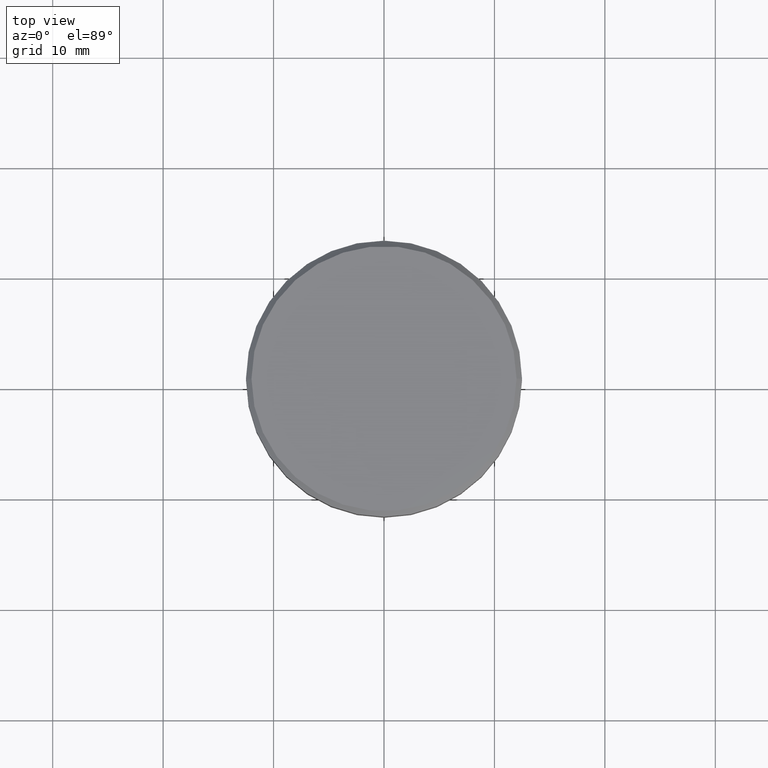
[diagram: clean part render]
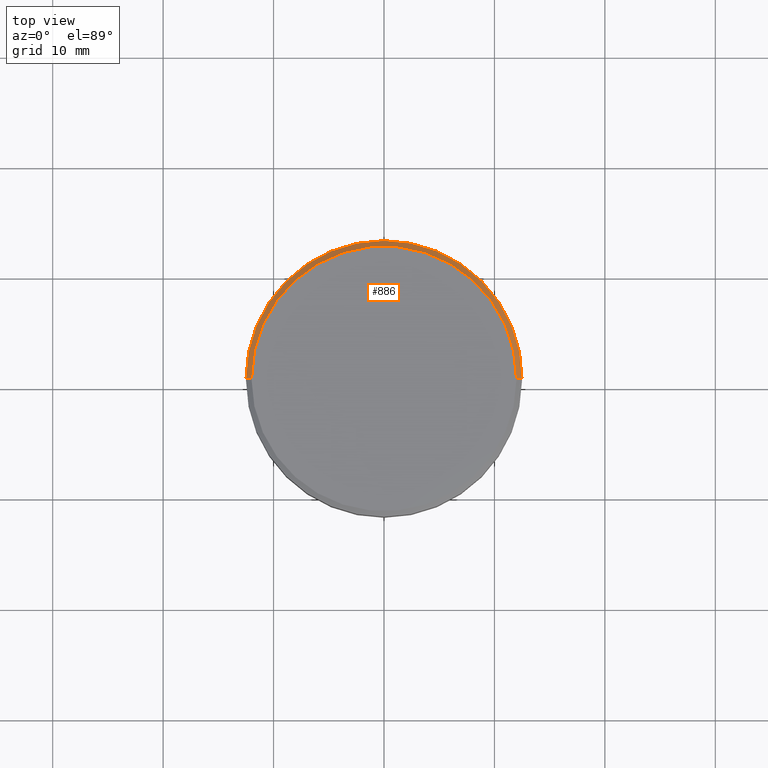
[diagram: same view with one face highlighted and labeled with its STEP entity id]
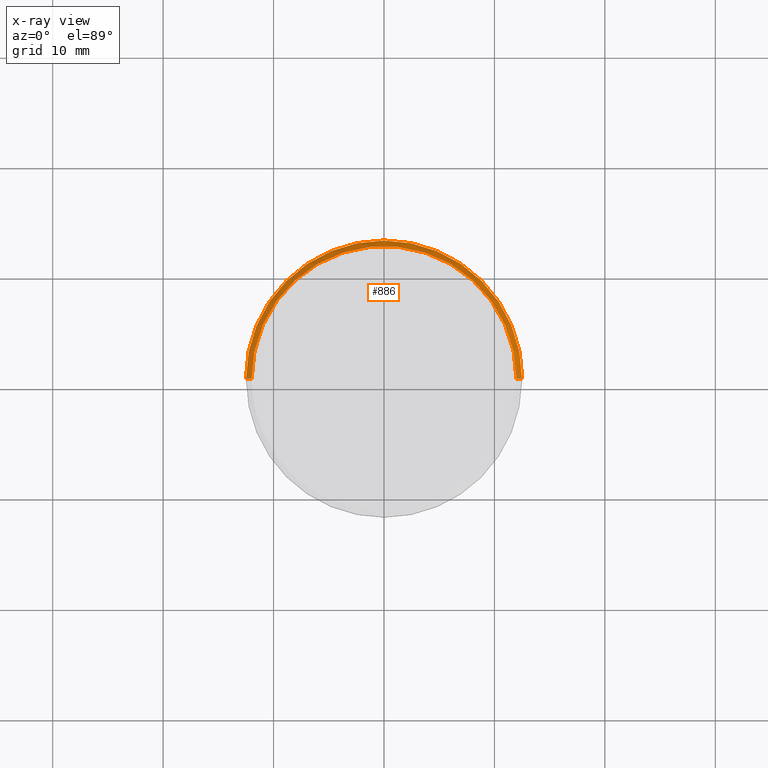
[diagram: x-ray of the same camera — body ghosted, the highlighted face saturated]
A machine part, top view. The second image highlights one B-rep face of the part: STEP entity #886.
The next image is the same camera in x-ray: the body ghosted, the highlighted face saturated — about 0% of this face is hidden behind the body in this view.
In plain terms, the highlighted conical surface has half-angle 45 deg.
Its self-contained STEP definition (entity closure, byte-faithful):
#20 = DIRECTION ( 'NONE',  ( 0.7071067811865463515, 8.659560562354919300E-17, -0.7071067811865487940 ) ) ;
#113 = AXIS2_PLACEMENT_3D ( 'NONE', #157, #425, #165 ) ;
#131 = EDGE_CURVE ( 'NONE', #364, #999, #798, .T. ) ;
#157 = CARTESIAN_POINT ( 'NONE',  ( 0.000000000000000000, 0.000000000000000000, 0.000000000000000000 ) ) ;
#165 = DIRECTION ( 'NONE',  ( -1.000000000000000000, 0.000000000000000000, 0.000000000000000000 ) ) ;
#227 = VERTEX_POINT ( 'NONE', #280 ) ;
#280 = CARTESIAN_POINT ( 'NONE',  ( -12.50000000000000000, 1.530808498934191521E-15, -0.5000000000000056621 ) ) ;
#300 = DIRECTION ( 'NONE',  ( -0.000000000000000000, -0.000000000000000000, 1.000000000000000000 ) ) ;
#323 = FACE_OUTER_BOUND ( 'NONE', #533, .T. ) ;
#341 = CARTESIAN_POINT ( 'NONE',  ( 0.000000000000000000, 0.000000000000000000, -0.5000000000000056621 ) ) ;
#364 = VERTEX_POINT ( 'NONE', #1141 ) ;
#374 = AXIS2_PLACEMENT_3D ( 'NONE', #341, #612, #969 ) ;
#405 = ORIENTED_EDGE ( 'NONE', *, *, #920, .F. ) ;
#425 = DIRECTION ( 'NONE',  ( 0.000000000000000000, 0.000000000000000000, -1.000000000000000000 ) ) ;
#438 = AXIS2_PLACEMENT_3D ( 'NONE', #984, #300, #666 ) ;
#462 = CONICAL_SURFACE ( 'NONE', #113, 11.99999999999999645, 0.7853981633974466137 ) ;
#475 = CARTESIAN_POINT ( 'NONE',  ( 11.99999999999999645, 1.469576158976823553E-15, 0.000000000000000000 ) ) ;
#511 = ORIENTED_EDGE ( 'NONE', *, *, #647, .T. ) ;
#523 = VERTEX_POINT ( 'NONE', #717 ) ;
#533 = EDGE_LOOP ( 'NONE', ( #567, #511, #405, #640 ) ) ;
#567 = ORIENTED_EDGE ( 'NONE', *, *, #131, .F. ) ;
#591 = DIRECTION ( 'NONE',  ( -0.7071067811865463515, 0.000000000000000000, -0.7071067811865487940 ) ) ;
#612 = DIRECTION ( 'NONE',  ( 0.000000000000000000, 0.000000000000000000, -1.000000000000000000 ) ) ;
#626 = CARTESIAN_POINT ( 'NONE',  ( -11.99999999999999645, 0.000000000000000000, 0.000000000000000000 ) ) ;
#640 = ORIENTED_EDGE ( 'NONE', *, *, #1033, .F. ) ;
#647 = EDGE_CURVE ( 'NONE', #364, #523, #837, .T. ) ;
#656 = LINE ( 'NONE', #1137, #840 ) ;
#666 = DIRECTION ( 'NONE',  ( 1.000000000000000000, 0.000000000000000000, 0.000000000000000000 ) ) ;
#717 = CARTESIAN_POINT ( 'NONE',  ( 12.50000000000000000, 0.000000000000000000, -0.5000000000000056621 ) ) ;
#798 = CIRCLE ( 'NONE', #438, 11.99999999999999645 ) ;
#837 = LINE ( 'NONE', #475, #858 ) ;
#840 = VECTOR ( 'NONE', #591, 1000.000000000000000 ) ;
#858 = VECTOR ( 'NONE', #20, 1000.000000000000000 ) ;
#886 = ADVANCED_FACE ( 'NONE', ( #323 ), #462, .T. ) ;
#916 = CIRCLE ( 'NONE', #374, 12.50000000000000000 ) ;
#920 = EDGE_CURVE ( 'NONE', #227, #523, #916, .T. ) ;
#969 = DIRECTION ( 'NONE',  ( 1.000000000000000000, 0.000000000000000000, 0.000000000000000000 ) ) ;
#984 = CARTESIAN_POINT ( 'NONE',  ( 0.000000000000000000, 0.000000000000000000, 0.000000000000000000 ) ) ;
#999 = VERTEX_POINT ( 'NONE', #626 ) ;
#1033 = EDGE_CURVE ( 'NONE', #999, #227, #656, .T. ) ;
#1137 = CARTESIAN_POINT ( 'NONE',  ( -11.99999999999999645, 0.000000000000000000, 0.000000000000000000 ) ) ;
#1141 = CARTESIAN_POINT ( 'NONE',  ( 11.99999999999999645, 1.500192328955507537E-15, 0.000000000000000000 ) ) ;